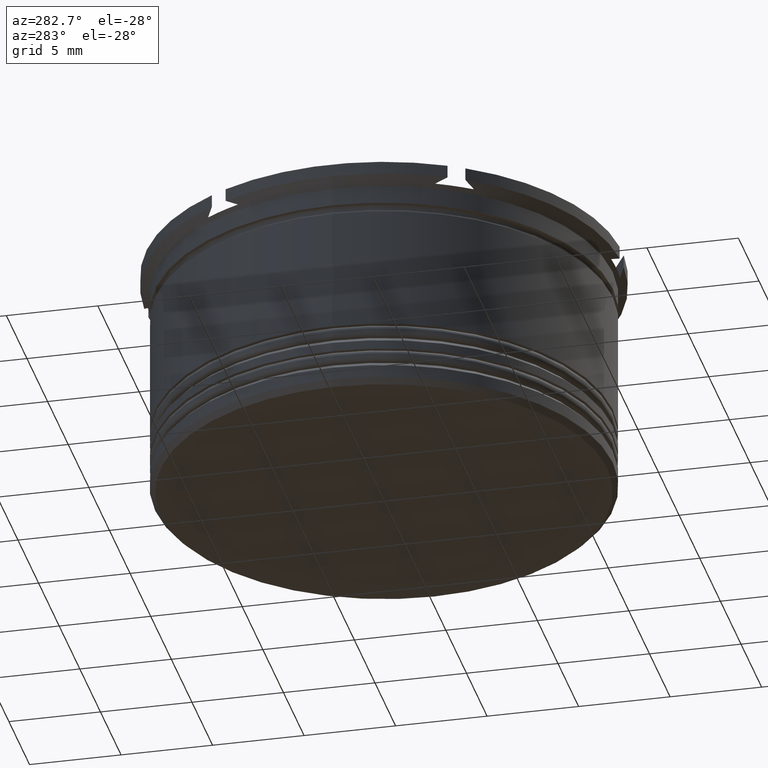
[diagram: clean part render]
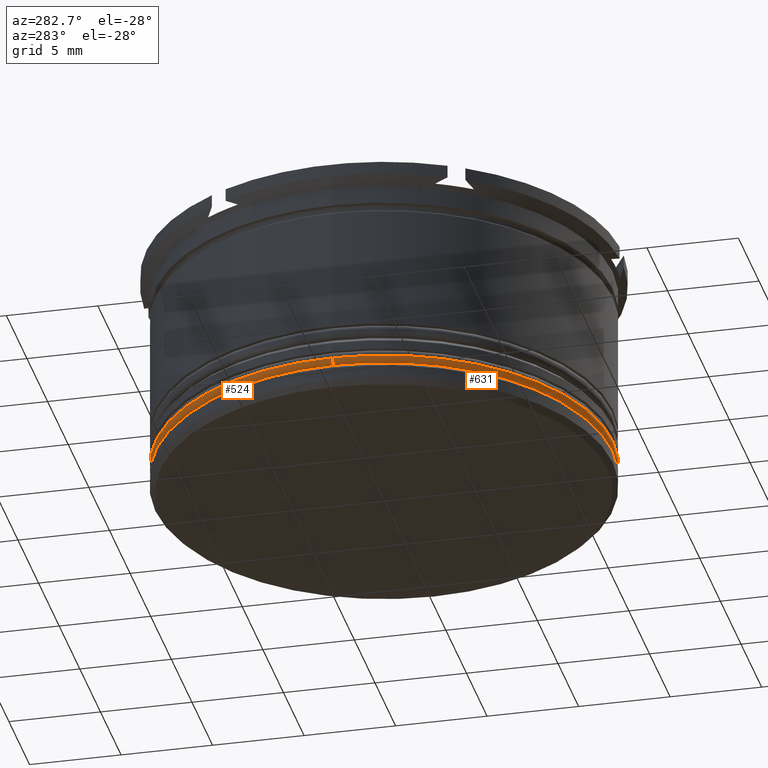
[diagram: same view with one multi-face feature highlighted, each face labeled with its STEP entity id]
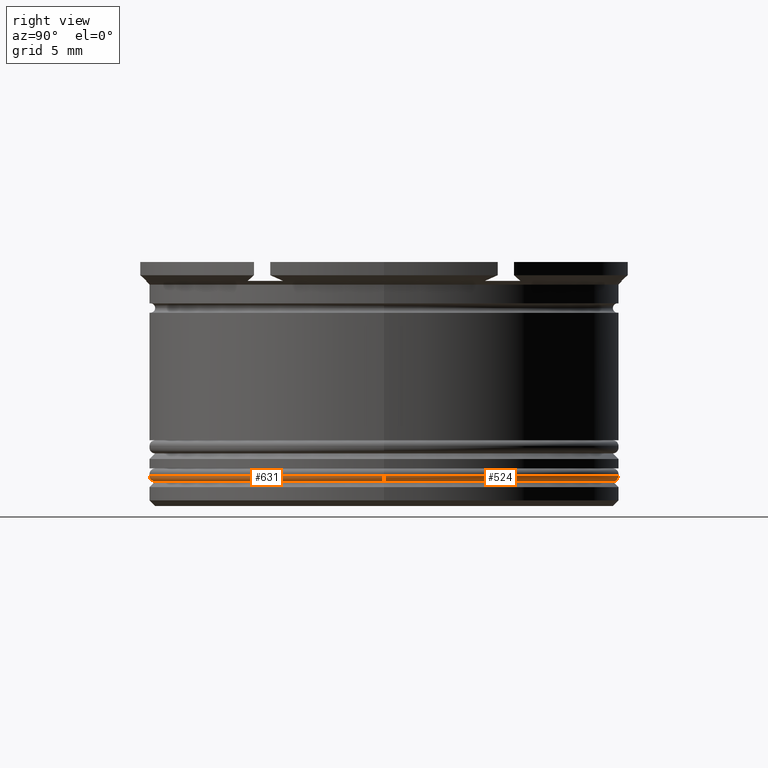
[diagram: same view with one multi-face feature highlighted, each face labeled with its STEP entity id]
A machine part, auxiliary view. The highlighted faces form ONE feature: a constant-radius fillet chain: 2 tangent blend faces with common blend radius 0.3 mm. The faces share edges in the B-rep.
A second angle (right view) of the same feature is appended — it is thin or edge-on in the first view.
Their STEP definitions:
[1] entity #524 (Torus):
#43 = EDGE_CURVE ( 'NONE', #1184, #942, #1614, .T. ) ;
#58 = EDGE_CURVE ( 'NONE', #785, #942, #333, .T. ) ;
#144 = EDGE_LOOP ( 'NONE', ( #967, #2151, #2081, #2061 ) ) ;
#165 = DIRECTION ( 'NONE',  ( 0.000000000000000000, 0.000000000000000000, 1.000000000000000000 ) ) ;
#219 = AXIS2_PLACEMENT_3D ( 'NONE', #596, #1872, #1117 ) ;
#294 = AXIS2_PLACEMENT_3D ( 'NONE', #1807, #701, #2009 ) ;
#310 = CARTESIAN_POINT ( 'NONE',  ( 12.20000000000000107, 0.000000000000000000, -11.70000000000000462 ) ) ;
#333 = CIRCLE ( 'NONE', #839, 12.50000000000000000 ) ;
#364 = CARTESIAN_POINT ( 'NONE',  ( 0.000000000000000000, 0.000000000000000000, -11.40000000000000746 ) ) ;
#524 = ADVANCED_FACE ( 'NONE', ( #2373 ), #756, .T. ) ;
#596 = CARTESIAN_POINT ( 'NONE',  ( 0.000000000000000000, 0.000000000000000000, -11.70000000000000462 ) ) ;
#701 = DIRECTION ( 'NONE',  ( 1.224646799147353207E-16, 1.000000000000000000, -0.000000000000000000 ) ) ;
#756 = TOROIDAL_SURFACE ( 'NONE', #2064, 12.20000000000000107, 0.2999999999999999889 ) ;
#764 = CARTESIAN_POINT ( 'NONE',  ( 12.20000000000000107, 0.000000000000000000, -11.40000000000000746 ) ) ;
#785 = VERTEX_POINT ( 'NONE', #1468 ) ;
#839 = AXIS2_PLACEMENT_3D ( 'NONE', #2167, #165, #1286 ) ;
#942 = VERTEX_POINT ( 'NONE', #1268 ) ;
#967 = ORIENTED_EDGE ( 'NONE', *, *, #1727, .F. ) ;
#983 = DIRECTION ( 'NONE',  ( 0.000000000000000000, 0.000000000000000000, -1.000000000000000000 ) ) ;
#1085 = CIRCLE ( 'NONE', #219, 12.20000000000000107 ) ;
#1117 = DIRECTION ( 'NONE',  ( 1.000000000000000000, 0.000000000000000000, 0.000000000000000000 ) ) ;
#1165 = DIRECTION ( 'NONE',  ( 0.000000000000000000, -1.000000000000000000, 0.000000000000000000 ) ) ;
#1184 = VERTEX_POINT ( 'NONE', #2087 ) ;
#1268 = CARTESIAN_POINT ( 'NONE',  ( -12.50000000000000000, 1.530808498934191521E-15, -11.40000000000000746 ) ) ;
#1272 = CIRCLE ( 'NONE', #1352, 0.2999999999999999334 ) ;
#1274 = DIRECTION ( 'NONE',  ( 0.000000000000000000, 0.000000000000000000, 1.000000000000000000 ) ) ;
#1286 = DIRECTION ( 'NONE',  ( 1.000000000000000000, 0.000000000000000000, 0.000000000000000000 ) ) ;
#1352 = AXIS2_PLACEMENT_3D ( 'NONE', #764, #1165, #983 ) ;
#1468 = CARTESIAN_POINT ( 'NONE',  ( 12.50000000000000000, 0.000000000000000000, -11.40000000000000746 ) ) ;
#1614 = CIRCLE ( 'NONE', #294, 0.2999999999999999334 ) ;
#1680 = VERTEX_POINT ( 'NONE', #310 ) ;
#1727 = EDGE_CURVE ( 'NONE', #1184, #1680, #1085, .T. ) ;
#1807 = CARTESIAN_POINT ( 'NONE',  ( -12.20000000000000107, 1.494069094959771056E-15, -11.40000000000000746 ) ) ;
#1872 = DIRECTION ( 'NONE',  ( -0.000000000000000000, -0.000000000000000000, -1.000000000000000000 ) ) ;
#1989 = EDGE_CURVE ( 'NONE', #1680, #785, #1272, .T. ) ;
#2009 = DIRECTION ( 'NONE',  ( -1.000000000000000000, 1.224646799147353207E-16, 0.000000000000000000 ) ) ;
#2061 = ORIENTED_EDGE ( 'NONE', *, *, #1989, .F. ) ;
#2064 = AXIS2_PLACEMENT_3D ( 'NONE', #364, #1274, #2230 ) ;
#2081 = ORIENTED_EDGE ( 'NONE', *, *, #58, .F. ) ;
#2087 = CARTESIAN_POINT ( 'NONE',  ( -12.20000000000000107, 1.512438796946981289E-15, -11.70000000000000462 ) ) ;
#2151 = ORIENTED_EDGE ( 'NONE', *, *, #43, .T. ) ;
#2167 = CARTESIAN_POINT ( 'NONE',  ( 0.000000000000000000, 0.000000000000000000, -11.40000000000000746 ) ) ;
#2230 = DIRECTION ( 'NONE',  ( 1.000000000000000000, 0.000000000000000000, 0.000000000000000000 ) ) ;
#2373 = FACE_OUTER_BOUND ( 'NONE', #144, .T. ) ;
[2] entity #631 (Torus):
#43 = EDGE_CURVE ( 'NONE', #1184, #942, #1614, .T. ) ;
#49 = TOROIDAL_SURFACE ( 'NONE', #253, 12.20000000000000107, 0.2999999999999999889 ) ;
#62 = DIRECTION ( 'NONE',  ( 0.000000000000000000, 0.000000000000000000, 1.000000000000000000 ) ) ;
#75 = EDGE_LOOP ( 'NONE', ( #639, #2164, #686, #1040 ) ) ;
#253 = AXIS2_PLACEMENT_3D ( 'NONE', #1705, #62, #1531 ) ;
#294 = AXIS2_PLACEMENT_3D ( 'NONE', #1807, #701, #2009 ) ;
#310 = CARTESIAN_POINT ( 'NONE',  ( 12.20000000000000107, 0.000000000000000000, -11.70000000000000462 ) ) ;
#517 = EDGE_CURVE ( 'NONE', #1680, #1184, #1617, .T. ) ;
#631 = ADVANCED_FACE ( 'NONE', ( #1322 ), #49, .T. ) ;
#639 = ORIENTED_EDGE ( 'NONE', *, *, #43, .F. ) ;
#686 = ORIENTED_EDGE ( 'NONE', *, *, #1989, .T. ) ;
#701 = DIRECTION ( 'NONE',  ( 1.224646799147353207E-16, 1.000000000000000000, -0.000000000000000000 ) ) ;
#715 = AXIS2_PLACEMENT_3D ( 'NONE', #2203, #1062, #1633 ) ;
#764 = CARTESIAN_POINT ( 'NONE',  ( 12.20000000000000107, 0.000000000000000000, -11.40000000000000746 ) ) ;
#785 = VERTEX_POINT ( 'NONE', #1468 ) ;
#829 = DIRECTION ( 'NONE',  ( 0.000000000000000000, 0.000000000000000000, 1.000000000000000000 ) ) ;
#942 = VERTEX_POINT ( 'NONE', #1268 ) ;
#983 = DIRECTION ( 'NONE',  ( 0.000000000000000000, 0.000000000000000000, -1.000000000000000000 ) ) ;
#1040 = ORIENTED_EDGE ( 'NONE', *, *, #1537, .F. ) ;
#1062 = DIRECTION ( 'NONE',  ( -0.000000000000000000, -0.000000000000000000, -1.000000000000000000 ) ) ;
#1165 = DIRECTION ( 'NONE',  ( 0.000000000000000000, -1.000000000000000000, 0.000000000000000000 ) ) ;
#1184 = VERTEX_POINT ( 'NONE', #2087 ) ;
#1268 = CARTESIAN_POINT ( 'NONE',  ( -12.50000000000000000, 1.530808498934191521E-15, -11.40000000000000746 ) ) ;
#1272 = CIRCLE ( 'NONE', #1352, 0.2999999999999999334 ) ;
#1322 = FACE_OUTER_BOUND ( 'NONE', #75, .T. ) ;
#1352 = AXIS2_PLACEMENT_3D ( 'NONE', #764, #1165, #983 ) ;
#1384 = AXIS2_PLACEMENT_3D ( 'NONE', #1903, #829, #2108 ) ;
#1468 = CARTESIAN_POINT ( 'NONE',  ( 12.50000000000000000, 0.000000000000000000, -11.40000000000000746 ) ) ;
#1490 = CIRCLE ( 'NONE', #1384, 12.50000000000000000 ) ;
#1531 = DIRECTION ( 'NONE',  ( 1.000000000000000000, 0.000000000000000000, 0.000000000000000000 ) ) ;
#1537 = EDGE_CURVE ( 'NONE', #942, #785, #1490, .T. ) ;
#1614 = CIRCLE ( 'NONE', #294, 0.2999999999999999334 ) ;
#1617 = CIRCLE ( 'NONE', #715, 12.20000000000000107 ) ;
#1633 = DIRECTION ( 'NONE',  ( 1.000000000000000000, 0.000000000000000000, 0.000000000000000000 ) ) ;
#1680 = VERTEX_POINT ( 'NONE', #310 ) ;
#1705 = CARTESIAN_POINT ( 'NONE',  ( 0.000000000000000000, 0.000000000000000000, -11.40000000000000746 ) ) ;
#1807 = CARTESIAN_POINT ( 'NONE',  ( -12.20000000000000107, 1.494069094959771056E-15, -11.40000000000000746 ) ) ;
#1903 = CARTESIAN_POINT ( 'NONE',  ( 0.000000000000000000, 0.000000000000000000, -11.40000000000000746 ) ) ;
#1989 = EDGE_CURVE ( 'NONE', #1680, #785, #1272, .T. ) ;
#2009 = DIRECTION ( 'NONE',  ( -1.000000000000000000, 1.224646799147353207E-16, 0.000000000000000000 ) ) ;
#2087 = CARTESIAN_POINT ( 'NONE',  ( -12.20000000000000107, 1.512438796946981289E-15, -11.70000000000000462 ) ) ;
#2108 = DIRECTION ( 'NONE',  ( 1.000000000000000000, 0.000000000000000000, 0.000000000000000000 ) ) ;
#2164 = ORIENTED_EDGE ( 'NONE', *, *, #517, .F. ) ;
#2203 = CARTESIAN_POINT ( 'NONE',  ( 0.000000000000000000, 0.000000000000000000, -11.70000000000000462 ) ) ;